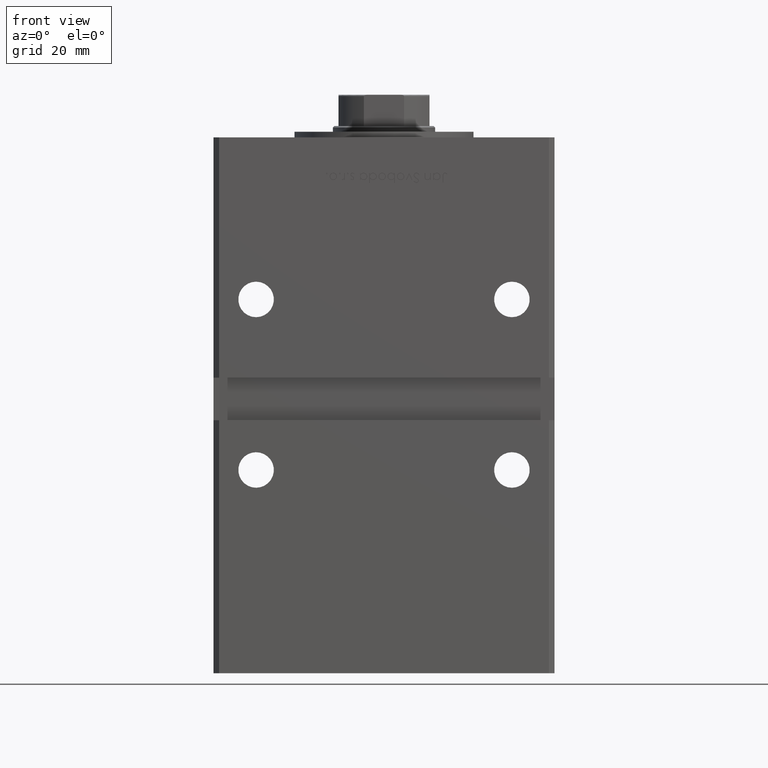
[diagram: clean part render]
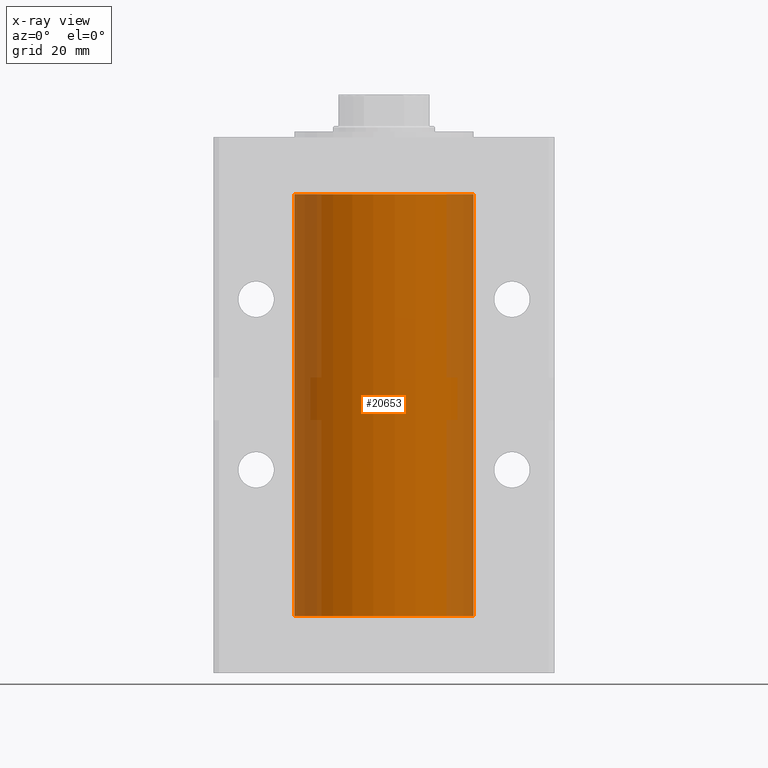
[diagram: x-ray — body ghosted, one internal face saturated and labeled with its STEP entity id]
A machine part, front view, then the same camera in x-ray: the body is ghosted and one INTERNAL B-rep face — a face not visible from any outside direction — is saturated and labeled: STEP entity #20653.
In plain terms, the highlighted cylindrical surface (partial cylindrical patch) has radius 31.5 mm, axis along (-0, -0, -1).
Its self-contained STEP definition (entity closure, byte-faithful):
#284 = EDGE_CURVE ( 'NONE', #52934, #29174, #17076, .T. ) ;
#1768 = DIRECTION ( 'NONE',  ( -0.000000000000000000, 0.000000000000000000, 1.000000000000000000 ) ) ;
#2991 = FACE_OUTER_BOUND ( 'NONE', #11841, .T. ) ;
#3002 = ORIENTED_EDGE ( 'NONE', *, *, #8296, .F. ) ;
#3066 = CARTESIAN_POINT ( 'NONE',  ( 31.50000000000000000, 3.857637417314162689E-15, 148.5000000000000000 ) ) ;
#5467 = AXIS2_PLACEMENT_3D ( 'NONE', #30412, #17813, #13512 ) ;
#6739 = DIRECTION ( 'NONE',  ( -1.000000000000000000, 0.000000000000000000, 0.000000000000000000 ) ) ;
#8296 = EDGE_CURVE ( 'NONE', #29174, #43084, #28620, .T. ) ;
#8585 = DIRECTION ( 'NONE',  ( 1.000000000000000000, 0.000000000000000000, 0.000000000000000000 ) ) ;
#9060 = DIRECTION ( 'NONE',  ( -0.000000000000000000, -0.000000000000000000, -1.000000000000000000 ) ) ;
#10402 = CARTESIAN_POINT ( 'NONE',  ( -31.50000000000000000, 0.000000000000000000, 148.5000000000000000 ) ) ;
#11841 = EDGE_LOOP ( 'NONE', ( #13586, #52329, #3002, #37554 ) ) ;
#12556 = CIRCLE ( 'NONE', #26275, 31.50000000000000000 ) ;
#12785 = DIRECTION ( 'NONE',  ( -0.000000000000000000, -0.000000000000000000, -1.000000000000000000 ) ) ;
#13308 = CARTESIAN_POINT ( 'NONE',  ( -31.50000000000000000, 0.000000000000000000, 148.5000000000000000 ) ) ;
#13512 = DIRECTION ( 'NONE',  ( 1.000000000000000000, 0.000000000000000000, 0.000000000000000000 ) ) ;
#13586 = ORIENTED_EDGE ( 'NONE', *, *, #19959, .T. ) ;
#15336 = DIRECTION ( 'NONE',  ( -0.000000000000000000, -0.000000000000000000, -1.000000000000000000 ) ) ;
#17076 = LINE ( 'NONE', #13308, #23253 ) ;
#17813 = DIRECTION ( 'NONE',  ( -0.000000000000000000, 0.000000000000000000, 1.000000000000000000 ) ) ;
#19466 = AXIS2_PLACEMENT_3D ( 'NONE', #34929, #15336, #6739 ) ;
#19959 = EDGE_CURVE ( 'NONE', #52934, #36829, #12556, .T. ) ;
#20653 = ADVANCED_FACE ( 'NONE', ( #2991 ), #27421, .F. ) ;
#23253 = VECTOR ( 'NONE', #12785, 1000.000000000000000 ) ;
#26229 = LINE ( 'NONE', #42592, #46781 ) ;
#26275 = AXIS2_PLACEMENT_3D ( 'NONE', #33285, #1768, #8585 ) ;
#27421 = CYLINDRICAL_SURFACE ( 'NONE', #19466, 31.50000000000000000 ) ;
#28620 = CIRCLE ( 'NONE', #5467, 31.50000000000000000 ) ;
#29174 = VERTEX_POINT ( 'NONE', #36728 ) ;
#30412 = CARTESIAN_POINT ( 'NONE',  ( 0.000000000000000000, 0.000000000000000000, 0.000000000000000000 ) ) ;
#33285 = CARTESIAN_POINT ( 'NONE',  ( 0.000000000000000000, 0.000000000000000000, 148.5000000000000000 ) ) ;
#34929 = CARTESIAN_POINT ( 'NONE',  ( 0.000000000000000000, 0.000000000000000000, 148.5000000000000000 ) ) ;
#36728 = CARTESIAN_POINT ( 'NONE',  ( -31.50000000000000000, 0.000000000000000000, 0.000000000000000000 ) ) ;
#36829 = VERTEX_POINT ( 'NONE', #3066 ) ;
#37554 = ORIENTED_EDGE ( 'NONE', *, *, #284, .F. ) ;
#42592 = CARTESIAN_POINT ( 'NONE',  ( 31.50000000000000000, 3.857637417314162689E-15, 148.5000000000000000 ) ) ;
#43084 = VERTEX_POINT ( 'NONE', #48937 ) ;
#46781 = VECTOR ( 'NONE', #9060, 1000.000000000000000 ) ;
#48057 = EDGE_CURVE ( 'NONE', #36829, #43084, #26229, .T. ) ;
#48937 = CARTESIAN_POINT ( 'NONE',  ( 31.50000000000000000, 3.857637417314162689E-15, 0.000000000000000000 ) ) ;
#52329 = ORIENTED_EDGE ( 'NONE', *, *, #48057, .T. ) ;
#52934 = VERTEX_POINT ( 'NONE', #10402 ) ;